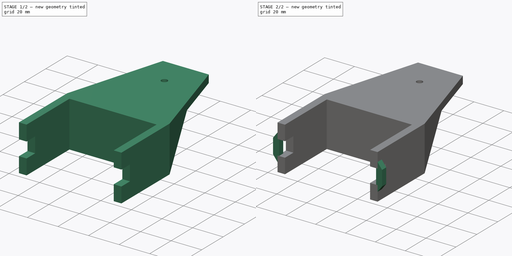
[diagram: build sequence overview — one tinted view per stage of 2, left to right]
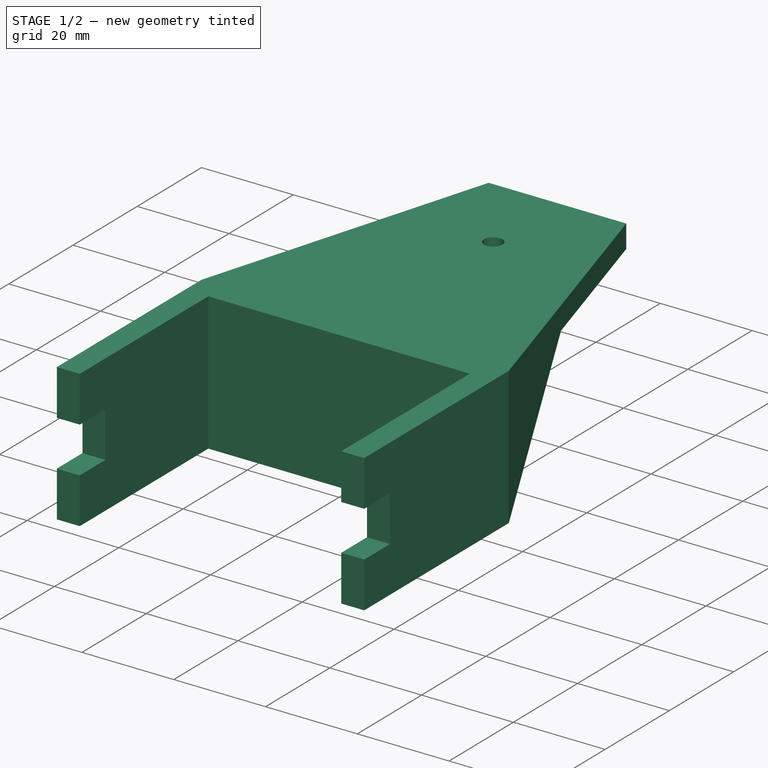
[diagram: stage 1 of 2 — iso view after this stage's code; geometry added in this stage tinted green]
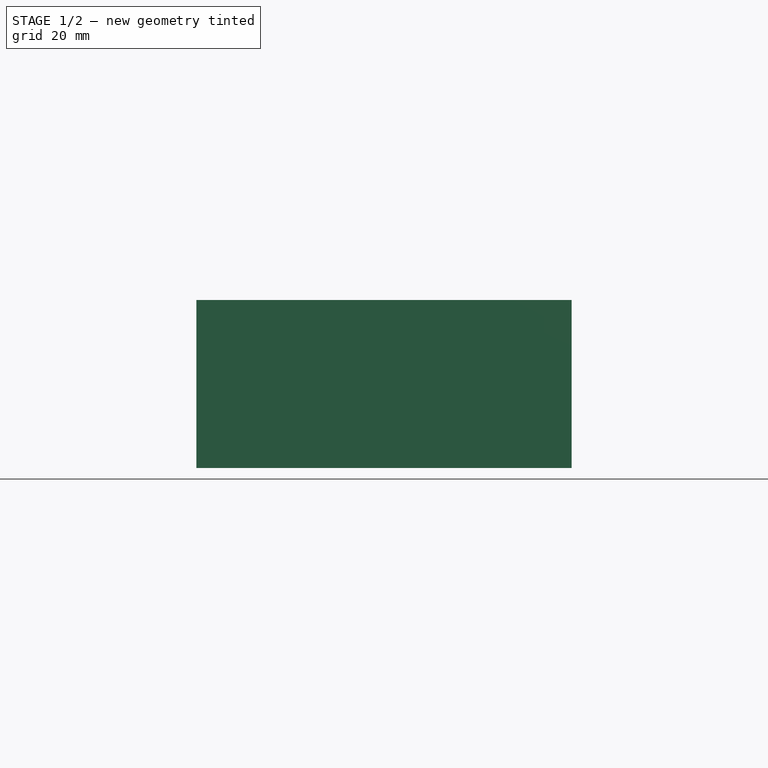
[diagram: stage 1 of 2 — front view after this stage's code; geometry added in this stage tinted green]
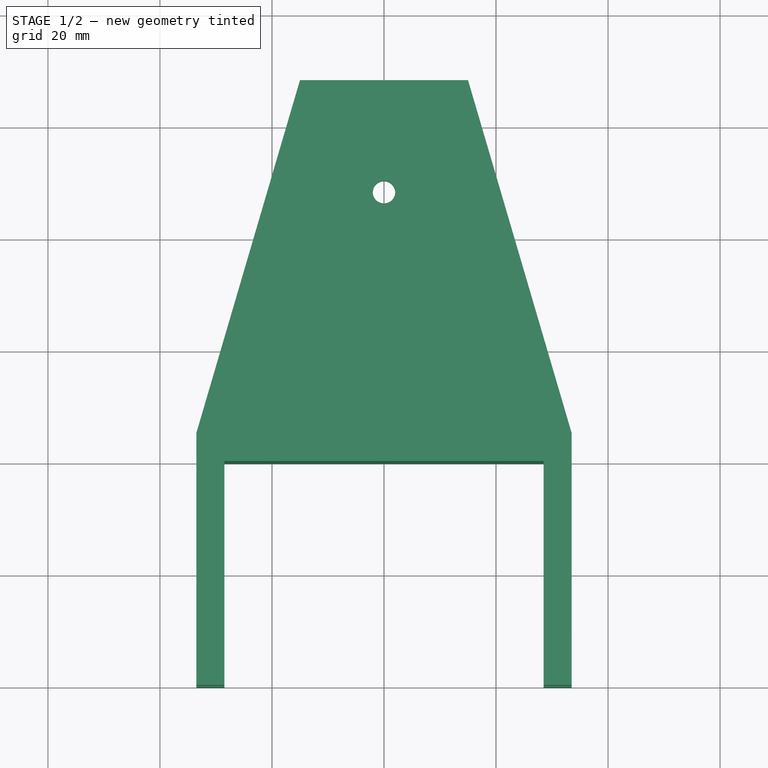
[diagram: stage 1 of 2 — top view after this stage's code; geometry added in this stage tinted green]
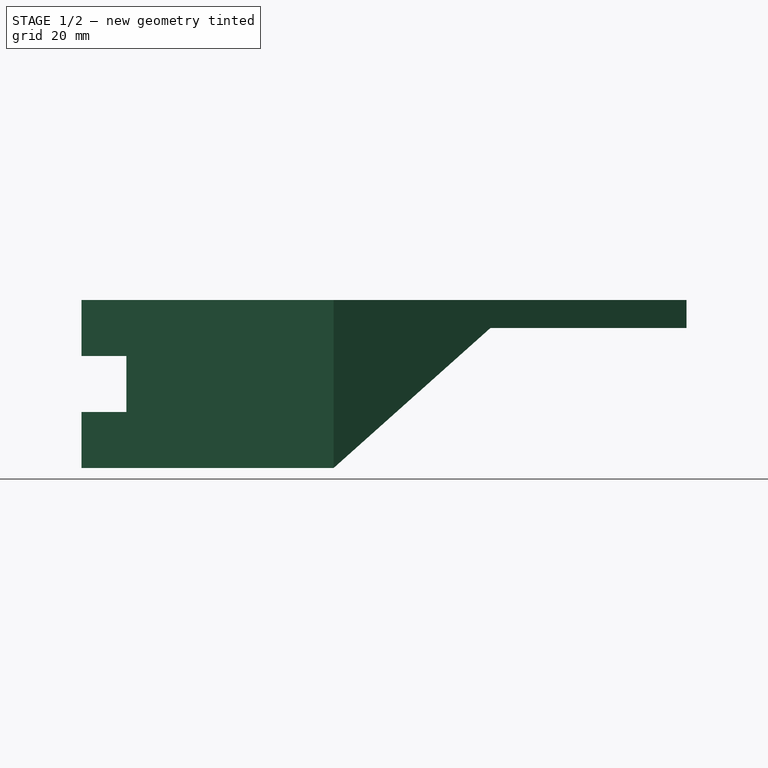
[diagram: stage 1 of 2 — right view after this stage's code; geometry added in this stage tinted green]
FCSTD DOCUMENT  (FreeCAD 0.20R29177 (Git))
Label: zbracket
License: All rights reserved
LicenseURL: http://en.wikipedia.org/wiki/All_rights_reserved
objects: Sketcher::SketchObject×3, PartDesign::Pad×2, PartDesign::Pocket×1, PartDesign::Body×1
note: 10 computed .brp shape members not serialized (recipe doc carries the construction recipe); baked Part::Feature solids carry a one-line shape summary decoded from their .brp

FEATURE [Sketcher::SketchObject] Sketch
  FullyConstrained = true
  MapMode = 5
  Support = -> [XY_Plane]
  sketch-geometry (11):
    g0: LineSegment StartX=-33.5 StartY=0 StartZ=0 EndX=-33.5 EndY=45 EndZ=0
    g1: LineSegment StartX=33.5 StartY=45 StartZ=0 EndX=33.5 EndY=0 EndZ=0
    g2: LineSegment StartX=33.5 StartY=0 StartZ=0 EndX=28.5 EndY=0 EndZ=0
    g3: LineSegment StartX=28.5 StartY=0 StartZ=0 EndX=28.5 EndY=40 EndZ=0
    g4: LineSegment StartX=28.5 StartY=40 StartZ=0 EndX=-28.5 EndY=40 EndZ=0
    g5: LineSegment StartX=-28.5 StartY=40 StartZ=0 EndX=-28.5 EndY=0 EndZ=0
    g6: LineSegment StartX=-28.5 StartY=0 StartZ=0 EndX=-33.5 EndY=0 EndZ=0
    g7: LineSegment StartX=-15 StartY=108 StartZ=0 EndX=15 EndY=108 EndZ=0
    g8: LineSegment StartX=33.5 StartY=45 StartZ=0 EndX=15 EndY=108 EndZ=0
    g9: LineSegment StartX=-15 StartY=108 StartZ=0 EndX=-33.5 EndY=45 EndZ=0
    g10: Circle CenterX=0 CenterY=88 CenterZ=0 NormalX=0 NormalY=0 NormalZ=1 AngleXU=0 Radius=2
  constraints (30):
    c: PointOnObject(g0,g-1)
    c: Vertical(g0)
    c: PointOnObject(g1,g-1)
    c: Vertical(g1)
    c: Coincident(g1,g2)
    c: PointOnObject(g2,g-1)
    c: Coincident(g2,g3)
    c: Vertical(g3)
    c: Coincident(g3,g4)
    c: Coincident(g4,g5)
    c: PointOnObject(g5,g-1)
    c: Coincident(g5,g6)
    c: Coincident(g6,g0)
    c: Vertical(g5)
    c: Symmetric(g4,g3,g-2)
    c: Symmetric(g0,g1,g-2)
    c: DistanceX(g5,g2) = 57
    c: DistanceX(g2,g2) = 5
    c: DistanceY(g3,g3) = 40
    c: DistanceY(g3,g1) = 5
    c: Symmetric(g7,g7,g-2)
    c: Coincident(g8,g1)
    c: Coincident(g8,g7)
    c: Coincident(g9,g7)
    c: Coincident(g9,g0)
    c: DistanceY(g3,g7) = 68
    c: PointOnObject(g10,g-2)
    c: DistanceY(g4,g10) = 48
    c: DistanceX(g7,g7) = 30
    c: Diameter(g10) = 4
FEATURE [PartDesign::Pad] Pad
  Direction = (0,0,1)
  Length = 30
  Length2 = 10
  Profile = -> Sketch
  ReferenceAxis = -> Sketch [N_Axis]
  Type = 0
FEATURE [Sketcher::SketchObject] Sketch001
  ExternalGeometry = -> [Pad]
  FullyConstrained = true
  MapMode = 5
  Placement = pos=(33.5,0,0) rot=(0.57735,0.57735,0.57735;2.0944rad)
  Support = -> [Pad]
  sketch-geometry (8):
    g0: LineSegment StartX=45 StartY=0 StartZ=0 EndX=73 EndY=25 EndZ=0
    g1: LineSegment StartX=73 StartY=25 StartZ=0 EndX=108 EndY=25 EndZ=0
    g2: LineSegment StartX=108 StartY=25 StartZ=0 EndX=108 EndY=0 EndZ=0
    g3: LineSegment StartX=108 StartY=0 StartZ=0 EndX=45 EndY=0 EndZ=0
    g4: LineSegment StartX=0 StartY=20 StartZ=0 EndX=8 EndY=20 EndZ=0
    g5: LineSegment StartX=8 StartY=20 StartZ=0 EndX=8 EndY=10 EndZ=0
    g6: LineSegment StartX=8 StartY=10 StartZ=0 EndX=0 EndY=10 EndZ=0
    g7: LineSegment StartX=0 StartY=10 StartZ=0 EndX=0 EndY=20 EndZ=0
  constraints (22):
    c: Coincident(g0,g-3)
    c: Coincident(g1,g0)
    c: Horizontal(g1)
    c: Coincident(g2,g1)
    c: Coincident(g2,g-4)
    c: Vertical(g2)
    c: Coincident(g3,g2)
    c: Coincident(g3,g0)
    c: DistanceY(g1,g-4) = 5
    c: DistanceX(g1,g1) = 35
    c: Coincident(g4,g5)
    c: Coincident(g5,g6)
    c: Coincident(g6,g7)
    c: Coincident(g7,g4)
    c: Horizontal(g4)
    c: Horizontal(g6)
    c: Vertical(g5)
    c: Vertical(g7)
    c: PointOnObject(g4,g-5)
    c: DistanceY(g-5,g6) = 10
    c: DistanceY(g4,g-5) = 10
    c: DistanceX(g6,g6) = 8
FEATURE [PartDesign::Pocket] Pocket
  BaseFeature = -> Pad
  Direction = (-1,0,0)
  Length = 33
  Length2 = 5
  Profile = -> Sketch001
  ReferenceAxis = -> Sketch001 [N_Axis]
  Type = 1
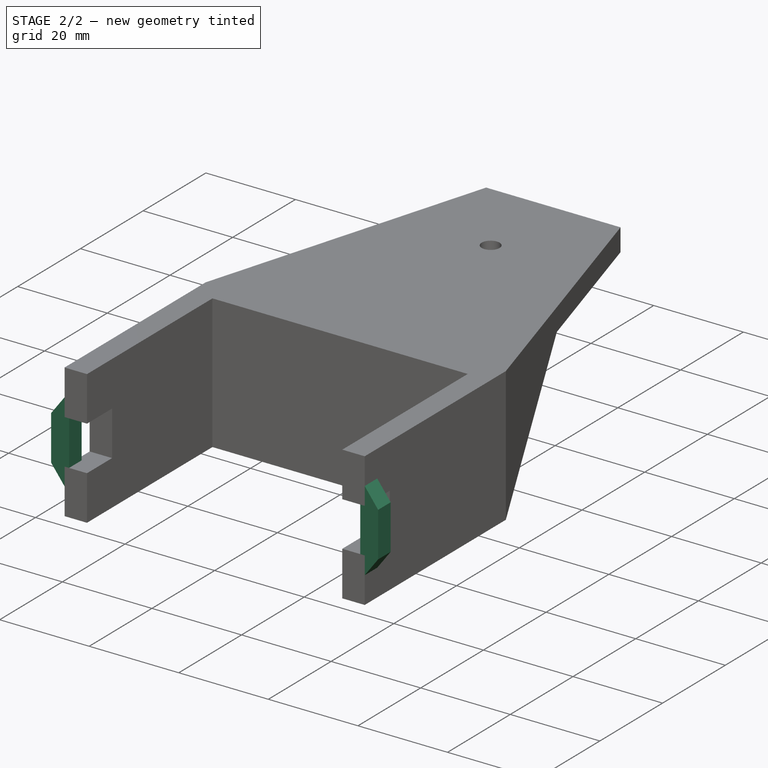
[diagram: stage 2 of 2 — iso view after this stage's code; geometry added in this stage tinted green]
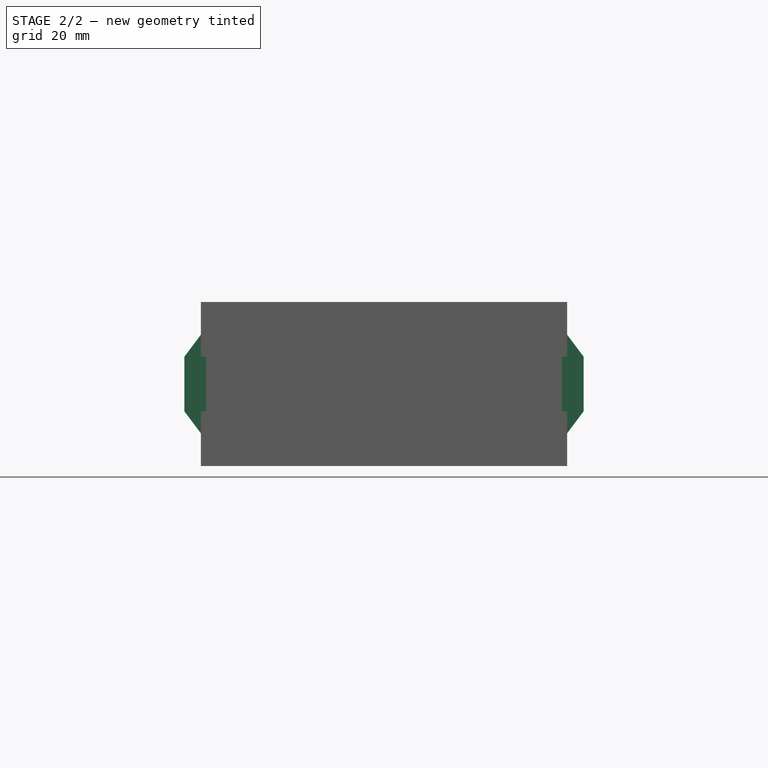
[diagram: stage 2 of 2 — front view after this stage's code; geometry added in this stage tinted green]
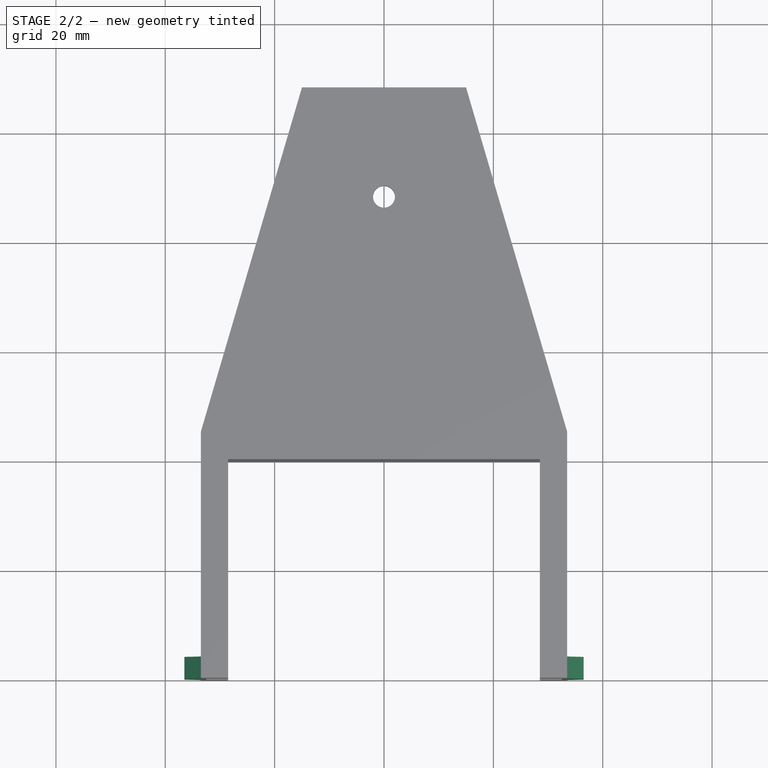
[diagram: stage 2 of 2 — top view after this stage's code; geometry added in this stage tinted green]
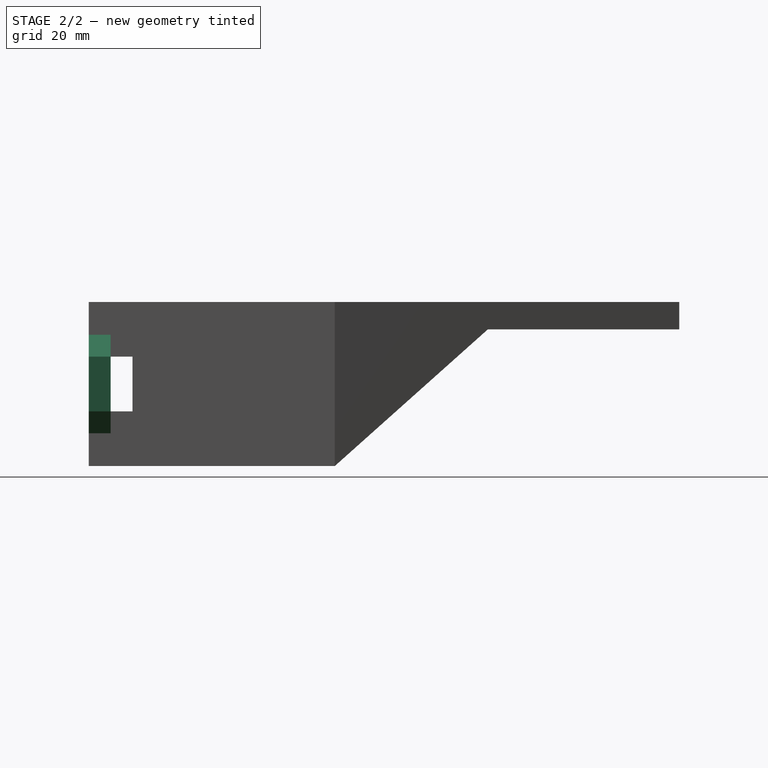
[diagram: stage 2 of 2 — right view after this stage's code; geometry added in this stage tinted green]
FEATURE [Sketcher::SketchObject] Sketch002
  ExternalGeometry = -> [Pocket]
  FullyConstrained = true
  MapMode = 5
  Placement = pos=(0,0,0) rot=(1,0,0;1.5708rad)
  Support = -> [Pocket]
  sketch-geometry (12):
    g0: LineSegment StartX=32.5 StartY=20 StartZ=0 EndX=33.5 EndY=24 EndZ=0
    g1: LineSegment StartX=33.5 StartY=24 StartZ=0 EndX=36.5 EndY=20 EndZ=0
    g2: LineSegment StartX=36.5 StartY=20 StartZ=0 EndX=36.5 EndY=10 EndZ=0
    g3: LineSegment StartX=36.5 StartY=10 StartZ=0 EndX=33.5 EndY=6 EndZ=0
    g4: LineSegment StartX=33.5 StartY=6 StartZ=0 EndX=32.5 EndY=10 EndZ=0
    g5: LineSegment StartX=32.5 StartY=10 StartZ=0 EndX=32.5 EndY=20 EndZ=0
    g6: LineSegment StartX=-32.5 StartY=20 StartZ=0 EndX=-33.5 EndY=24 EndZ=0
    g7: LineSegment StartX=-33.5 StartY=24 StartZ=0 EndX=-36.5 EndY=20 EndZ=0
    g8: LineSegment StartX=-36.5 StartY=20 StartZ=0 EndX=-36.5 EndY=10 EndZ=0
    g9: LineSegment StartX=-36.5 StartY=10 StartZ=0 EndX=-33.5 EndY=6 EndZ=0
    g10: LineSegment StartX=-33.5 StartY=6 StartZ=0 EndX=-32.5 EndY=10 EndZ=0
    g11: LineSegment StartX=-32.5 StartY=10 StartZ=0 EndX=-32.5 EndY=20 EndZ=0
  constraints (36):
    c: PointOnObject(g0,g-7)
    c: PointOnObject(g0,g-4)
    c: Coincident(g0,g1)
    c: Coincident(g1,g2)
    c: Vertical(g2)
    c: Coincident(g2,g3)
    c: PointOnObject(g3,g-3)
    c: Coincident(g3,g4)
    c: PointOnObject(g4,g-10)
    c: Coincident(g4,g5)
    c: Coincident(g5,g0)
    c: Vertical(g5)
    c: DistanceY(g-3,g2) = 10
    c: DistanceY(g1,g-4) = 10
    c: DistanceX(g-3,g2) = 3
    c: DistanceX(g4,g-3) = 1
    c: DistanceY(g1,g0) = 4
    c: DistanceY(g3,g2) = 4
    c: PointOnObject(g6,g-9)
    c: PointOnObject(g6,g-5)
    c: Coincident(g6,g7)
    c: Coincident(g7,g8)
    c: Vertical(g8)
    c: Coincident(g8,g9)
    c: PointOnObject(g9,g-6)
    c: Coincident(g9,g10)
    c: PointOnObject(g10,g-8)
    c: Coincident(g10,g11)
    c: Coincident(g11,g6)
    c: Vertical(g11)
    c: DistanceY(g9,g-8) = 4
    c: DistanceY(g-6,g8) = 10
    c: DistanceY(g7,g-5) = 10
    c: DistanceX(g8,g-8) = 3
    c: DistanceX(g-8,g10) = 1
    c: DistanceY(g-9,g6) = 4
FEATURE [PartDesign::Pad] Pad001
  BaseFeature = -> Pocket
  Direction = (0,-1,2e-16)
  Length = 4
  Length2 = 10
  Profile = -> Sketch002
  ReferenceAxis = -> Sketch002 [N_Axis]
  Reversed = true
  Type = 0
FEATURE [PartDesign::Body] Body
  Group = -> [Sketch,Pad,Sketch001,Pocket,Sketch002,Pad001]
  Origin = -> Origin
  Tip = -> Pad001
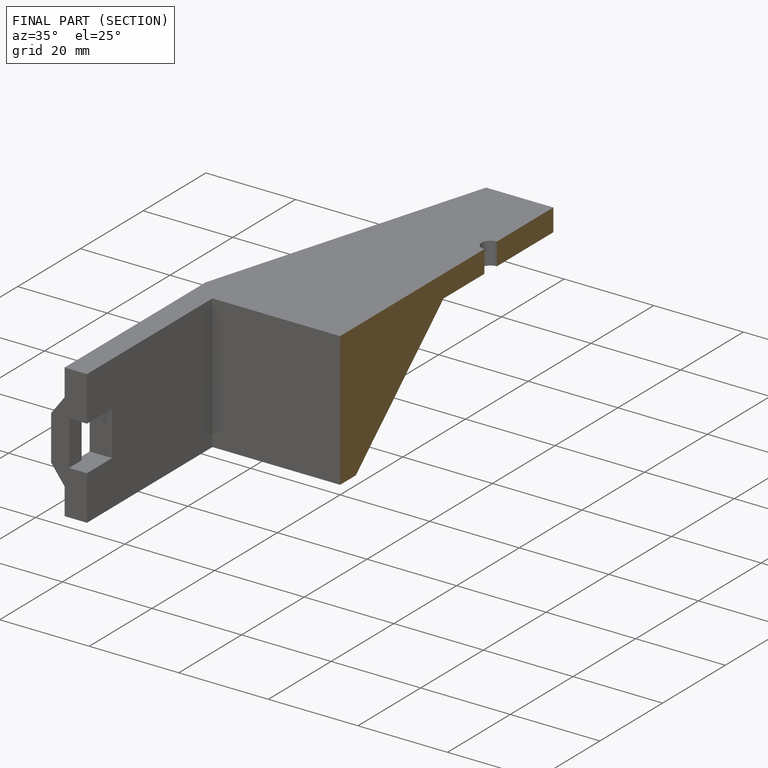
[diagram: finished part — half-section view (interior)]
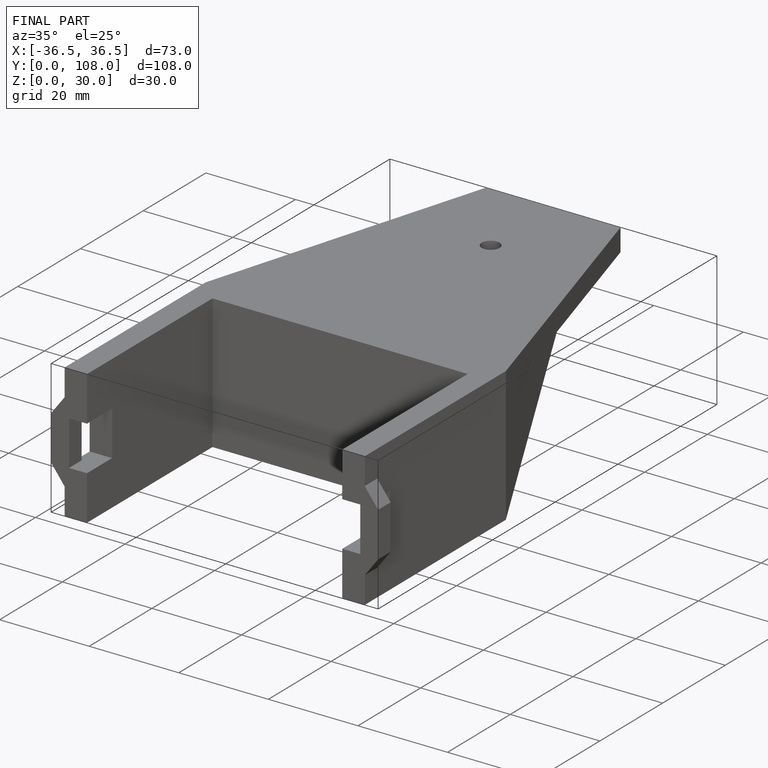
[diagram: finished part — iso view with bounding-box wireframe]
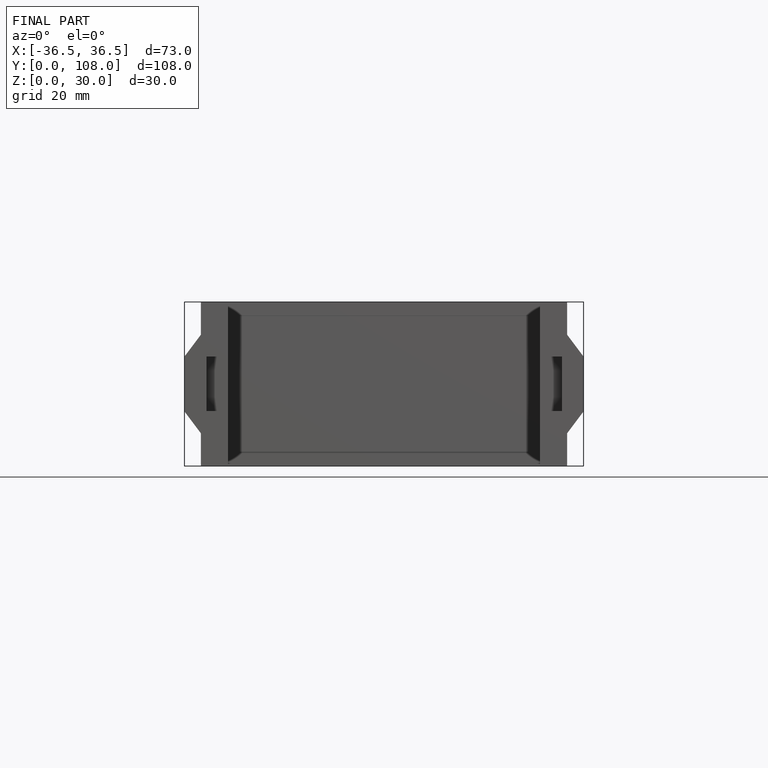
[diagram: finished part — front view with bounding-box wireframe]
